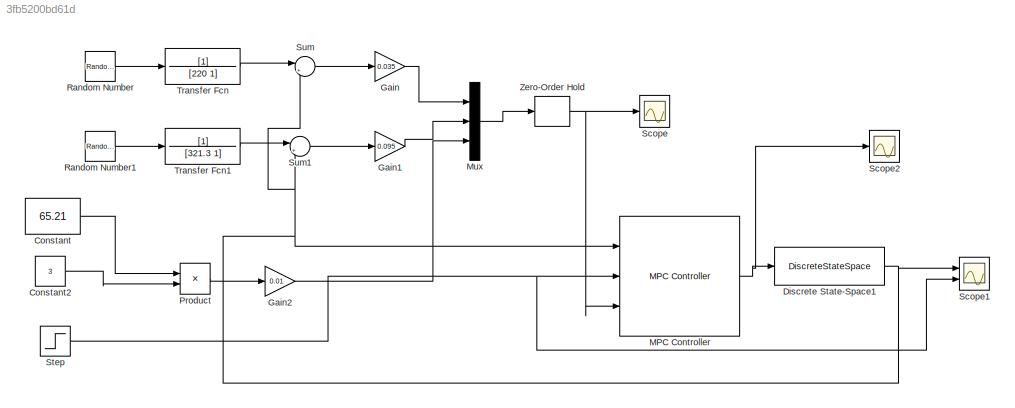
MODEL slx_3fb5200bd61d
KIND model
CONFIG AbsTol = auto
CONFIG EnableMultiTasking = off
CONFIG FixedStep = auto
CONFIG MaxStep = auto
CONFIG MinStep = auto
CONFIG RelTol = 1e-3
CONFIG SampleTimeConstraint = Unconstrained
CONFIG Solver = VariableStepAuto
CONFIG SolverName = VariableStepAuto
CONFIG StartTime = 0.0
CONFIG StopTime = 14000
BLOCK [Constant] Constant
  Value = 65.21
BLOCK [Constant] Constant2
  Value = 3
BLOCK [DiscreteStateSpace] Discrete State-Space1
  A = A
  B = B
  C = C
  D = D
  SampleTime = -1
BLOCK [Gain] Gain
  Gain = 0.035
  OutDataTypeStr = Inherit: Inherit via internal rule
  ParamDataTypeStr = Inherit: Inherit via internal rule
  SaturateOnIntegerOverflow = off
BLOCK [Gain] Gain1
  Gain = 0.095
  OutDataTypeStr = Inherit: Inherit via internal rule
  ParamDataTypeStr = Inherit: Inherit via internal rule
  SaturateOnIntegerOverflow = off
BLOCK [Gain] Gain2
  Gain = 0.01
  OutDataTypeStr = Inherit: Inherit via internal rule
  ParamDataTypeStr = Inherit: Inherit via internal rule
  SaturateOnIntegerOverflow = off
BLOCK [Reference] MPC Controller  REF=mpclib/MPC Controller  (lib defined in mdl_ae329e0e0455)
  Ports = [3, 1]
  SCDEnableBlockLinearizationSpecification = on
  SourceBlock = mpclib/MPC Controller
  SourceProductBaseCode = MP
  SourceProductName = Model Predictive Control Toolbox
  SourceType = MPC
BLOCK [Mux] Mux
  DisplayOption = bar
  Inputs = 3
  Ports = [3, 1]
BLOCK [Product] Product
  InputSameDT = off
  OutDataTypeStr = Inherit: Inherit via internal rule
  Ports = [2, 1]
  RndMeth = Floor
  SaturateOnIntegerOverflow = off
BLOCK [RandomNumber] Random Number
  Mean = 30
  SampleTime = 0.1
  Seed = 1
BLOCK [RandomNumber] Random Number1
  Mean = 24
  SampleTime = 0.1
  Seed = 1
BLOCK [Scope] Scope
  NumInputPorts = 1
  Ports = [1]
  ScopeSpecificationString = Simulink.scopes.TimeScopeBlockCfg('CurrentConfiguration', extmgr.ConfigurationSet(extmgr.Configuration('Core','General UI',true),extmgr.Configuration('Core','Source UI',true),extmgr.Configuration('Sources','WiredSimulink',true),extmgr.Configuration('Visuals','Time Domain',true,'SerializedDisplays',{struct('MinYLimReal','-3.14274','MaxYLimReal','2.52286','YLabelReal','','MinYLimMag','0.00000','MaxY...<+1406ch>
BLOCK [Scope] Scope1
  NumInputPorts = 2
  Ports = [2]
  ScopeSpecificationString = Simulink.scopes.TimeScopeBlockCfg('CurrentConfiguration', extmgr.ConfigurationSet(extmgr.Configuration('Core','General UI',true),extmgr.Configuration('Core','Source UI',true),extmgr.Configuration('Sources','WiredSimulink',true,'DataLoggingVariableName','ScopeData1'),extmgr.Configuration('Visuals','Time Domain',true,'SerializedDisplays',{struct('MinYLimReal','20.16555','MaxYLimReal','30.93549','YLa...<+1442ch>
BLOCK [Scope] Scope2
  NumInputPorts = 1
  Ports = [1]
  ScopeSpecificationString = Simulink.scopes.TimeScopeBlockCfg('CurrentConfiguration', extmgr.ConfigurationSet(extmgr.Configuration('Core','General UI',true),extmgr.Configuration('Core','Source UI',true),extmgr.Configuration('Sources','WiredSimulink',true,'DataLoggingVariableName','ScopeData2'),extmgr.Configuration('Visuals','Time Domain',true,'SerializedDisplays',{struct('MinYLimReal','-49.61905','MaxYLimReal','4.77883','YLa...<+1407ch>
BLOCK [Step] Step
  After = 21.5
  Before = 30
  SampleTime = 0
  Time = 320
BLOCK [Sum] Sum
  IconShape = round
  InputSameDT = off
  Inputs = |+-
  OutDataTypeStr = Inherit: Inherit via internal rule
  Ports = [2, 1]
  SaturateOnIntegerOverflow = off
BLOCK [Sum] Sum1
  IconShape = round
  InputSameDT = off
  Inputs = |+-
  OutDataTypeStr = Inherit: Inherit via internal rule
  Ports = [2, 1]
  SaturateOnIntegerOverflow = off
BLOCK [TransferFcn] Transfer Fcn
  Denominator = [220 1]
BLOCK [TransferFcn] Transfer Fcn1
  Denominator = [321.3 1]
BLOCK [ZeroOrderHold] Zero-Order Hold
  SampleTime = -1
LINE Constant2:1 -> Product:2
LINE Constant:1 -> Product:1
NET Discrete State-Space1:1 -> MPC Controller:1, Scope1:1, Sum1:2, Sum:2
LINE Gain1:1 -> Mux:2
LINE Gain2:1 -> Mux:3
LINE Gain:1 -> Mux:1
NET MPC Controller:1 -> Discrete State-Space1:1, Scope2:1
LINE Mux:1 -> Zero-Order Hold:1
LINE Product:1 -> Gain2:1
LINE Random Number1:1 -> Transfer Fcn1:1
LINE Random Number:1 -> Transfer Fcn:1
NET Step:1 -> MPC Controller:2, Scope1:2
LINE Sum1:1 -> Gain1:1
LINE Sum:1 -> Gain:1
LINE Transfer Fcn1:1 -> Sum1:1
LINE Transfer Fcn:1 -> Sum:1
NET Zero-Order Hold:1 -> MPC Controller:3, Scope:1
note: NET lines group one-source signal fan-out (src -> all destinations, sorted); 1:1 wires keep LINE
